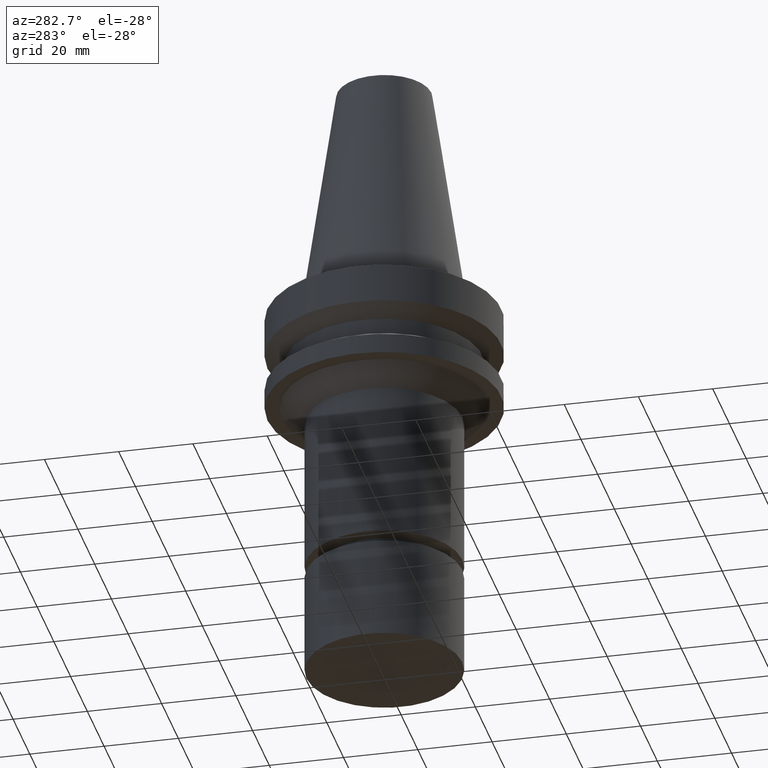
[diagram: clean part render]
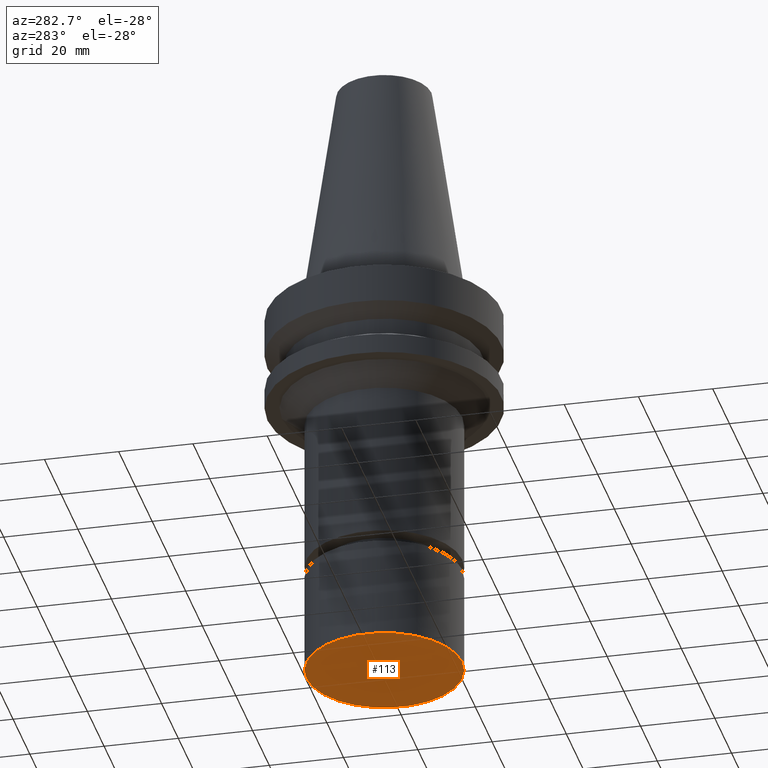
[diagram: same view with one face highlighted and labeled with its STEP entity id]
A machine part, auxiliary view. The second image highlights one B-rep face of the part: STEP entity #113.
In plain terms, the highlighted planar face has unit normal (0, 0, -1).
Its self-contained STEP definition (entity closure, byte-faithful):
#113=ADVANCED_FACE('Unnamed[1]',(#256),#257,.T.);
#145=EDGE_CURVE('Unnamed[1]',#308,#308,#309,.T.);
#256=FACE_OUTER_BOUND('',#446,.T.);
#257=PLANE('',#447);
#308=VERTEX_POINT('',#510);
#309=CIRCLE('',#511,21.0);
#446=EDGE_LOOP('',(#639));
#447=AXIS2_PLACEMENT_3D('',#640,#641,#642);
#510=CARTESIAN_POINT('',(6.4293956955236E-015,21.0,-105.0));
#511=AXIS2_PLACEMENT_3D('',#700,#701,#702);
#639=ORIENTED_EDGE('',*,*,#145,.T.);
#640=CARTESIAN_POINT('',(6.4293956955236E-015,10.5,-105.0));
#641=DIRECTION('',(6.12323399573677E-017,1.22464679914735E-016,-1.0));
#642=DIRECTION('',(-1.23259516440783E-032,1.0,1.22464679914735E-016));
#700=CARTESIAN_POINT('',(6.4293956955236E-015,5.47425908158355E-014,-105.0));
#701=DIRECTION('',(6.12323399573676E-017,-1.30838707338542E-016,-1.0));
#702=DIRECTION('',(3.18440747656711E-033,1.0,-1.30838707338542E-016));